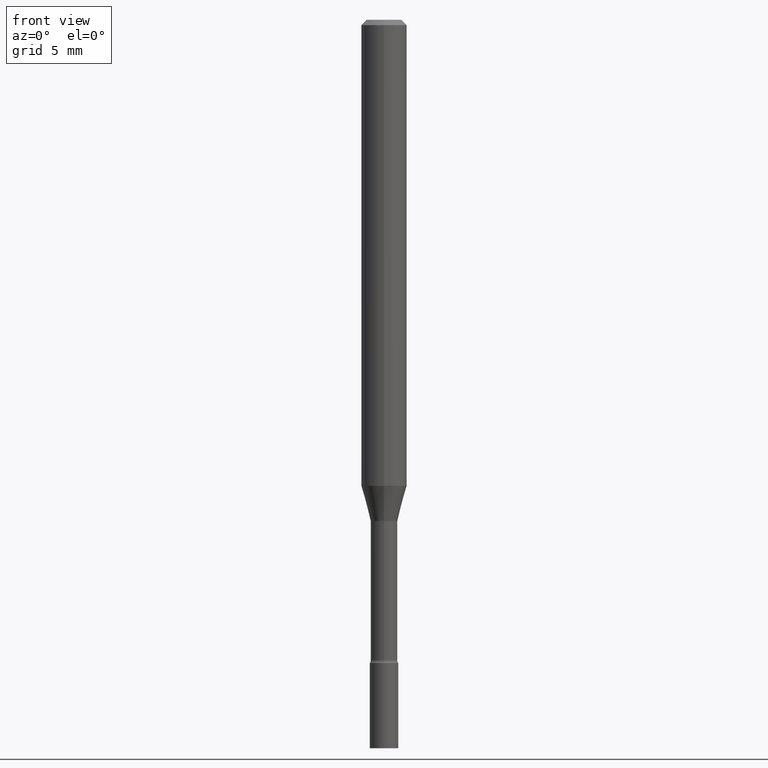
[diagram: clean part render]
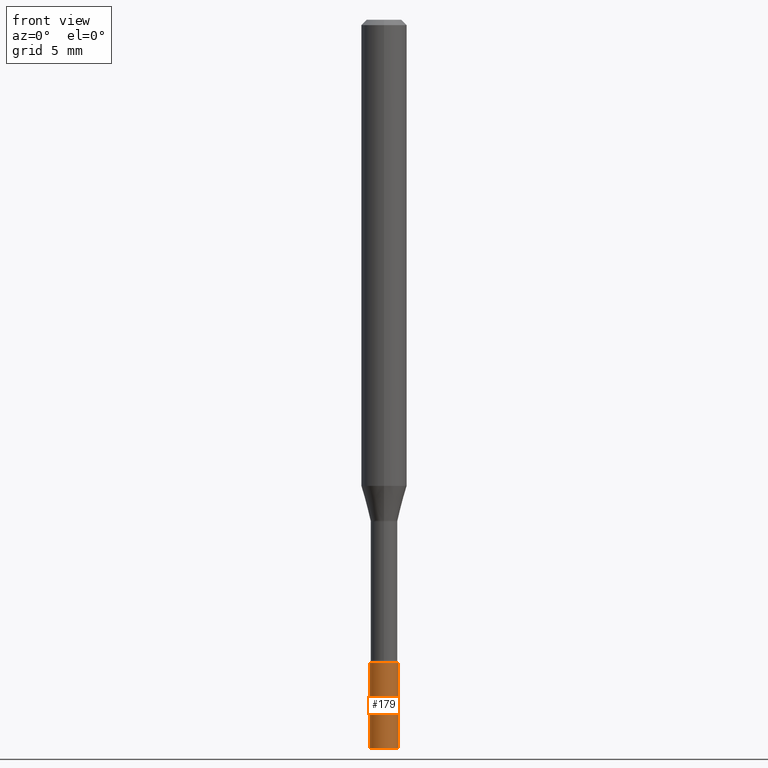
[diagram: same view with one face highlighted and labeled with its STEP entity id]
A machine part, front view. The second image highlights one B-rep face of the part: STEP entity #179.
In plain terms, the highlighted cylindrical surface (edge-blend (fillet) strip) has radius 0.9906 mm, axis along (-0, 0, 1).
Its self-contained STEP definition (entity closure, byte-faithful):
#3 = CARTESIAN_POINT ( 'NONE',  ( 4.318697911722950844E-29, -6.165956044396995152E-15, -1.766000000000000014 ) ) ;
#32 = LINE ( 'NONE', #466, #340 ) ;
#36 = VERTEX_POINT ( 'NONE', #317 ) ;
#37 = VERTEX_POINT ( 'NONE', #294 ) ;
#42 = ORIENTED_EDGE ( 'NONE', *, *, #222, .F. ) ;
#77 = DIRECTION ( 'NONE',  ( 1.000000000000000000, -6.982962677686265922E-15, 4.876176775795935793E-29 ) ) ;
#103 = LINE ( 'NONE', #145, #415 ) ;
#139 = AXIS2_PLACEMENT_3D ( 'NONE', #153, #469, #77 ) ;
#145 = CARTESIAN_POINT ( 'NONE',  ( -0.03899999999999999994, 2.771116669464390721E-16, -1.918384685199413078E-30 ) ) ;
#153 = CARTESIAN_POINT ( 'NONE',  ( 0.000000000000000000, 0.000000000000000000, 0.000000000000000000 ) ) ;
#179 = ADVANCED_FACE ( 'NONE', ( #352 ), #506, .T. ) ;
#190 = ORIENTED_EDGE ( 'NONE', *, *, #428, .T. ) ;
#199 = ORIENTED_EDGE ( 'NONE', *, *, #295, .T. ) ;
#206 = CIRCLE ( 'NONE', #502, 0.03899999999999999994 ) ;
#222 = EDGE_CURVE ( 'NONE', #37, #36, #298, .T. ) ;
#225 = DIRECTION ( 'NONE',  ( -2.445468806185136877E-29, 3.491481338843145188E-15, 1.000000000000000000 ) ) ;
#232 = VERTEX_POINT ( 'NONE', #349 ) ;
#251 = DIRECTION ( 'NONE',  ( -2.445468806185136597E-29, 3.491481338843145583E-15, 1.000000000000000000 ) ) ;
#258 = CARTESIAN_POINT ( 'NONE',  ( 4.890937612370273194E-29, -6.982962677686291165E-15, -2.000000000000000000 ) ) ;
#263 = DIRECTION ( 'NONE',  ( -2.445468806185136877E-29, 3.491481338843145188E-15, 1.000000000000000000 ) ) ;
#286 = DIRECTION ( 'NONE',  ( 1.000000000000000000, -6.982962677686258033E-15, 0.000000000000000000 ) ) ;
#289 = ORIENTED_EDGE ( 'NONE', *, *, #385, .F. ) ;
#294 = CARTESIAN_POINT ( 'NONE',  ( -0.03899999999999999994, -6.297347694095203445E-15, -1.766000000000000014 ) ) ;
#295 = EDGE_CURVE ( 'NONE', #232, #36, #32, .T. ) ;
#298 = CIRCLE ( 'NONE', #421, 0.03899999999999999994 ) ;
#303 = EDGE_LOOP ( 'NONE', ( #289, #190, #199, #42 ) ) ;
#317 = CARTESIAN_POINT ( 'NONE',  ( 0.03899999999999999994, -6.438291588826759175E-15, -1.766000000000000014 ) ) ;
#329 = DIRECTION ( 'NONE',  ( 1.000000000000000000, -6.982962677686258033E-15, 0.000000000000000000 ) ) ;
#332 = DIRECTION ( 'NONE',  ( -2.445468806185136597E-29, 3.491481338843145583E-15, 1.000000000000000000 ) ) ;
#340 = VECTOR ( 'NONE', #225, 39.37007874015748143 ) ;
#343 = CARTESIAN_POINT ( 'NONE',  ( -0.03899999999999999994, -6.297347694095203445E-15, -2.000000000000000000 ) ) ;
#349 = CARTESIAN_POINT ( 'NONE',  ( 0.03899999999999999994, -7.255298222116054399E-15, -2.000000000000000000 ) ) ;
#352 = FACE_OUTER_BOUND ( 'NONE', #303, .T. ) ;
#385 = EDGE_CURVE ( 'NONE', #514, #37, #103, .T. ) ;
#415 = VECTOR ( 'NONE', #263, 39.37007874015748143 ) ;
#421 = AXIS2_PLACEMENT_3D ( 'NONE', #3, #251, #329 ) ;
#428 = EDGE_CURVE ( 'NONE', #514, #232, #206, .T. ) ;
#466 = CARTESIAN_POINT ( 'NONE',  ( 0.03899999999999999994, -2.723355444297643682E-16, 1.901708942560414931E-30 ) ) ;
#469 = DIRECTION ( 'NONE',  ( -2.445468806185136597E-29, 3.491481338843145583E-15, 1.000000000000000000 ) ) ;
#502 = AXIS2_PLACEMENT_3D ( 'NONE', #258, #332, #286 ) ;
#506 = CYLINDRICAL_SURFACE ( 'NONE', #139, 0.03899999999999999994 ) ;
#514 = VERTEX_POINT ( 'NONE', #343 ) ;